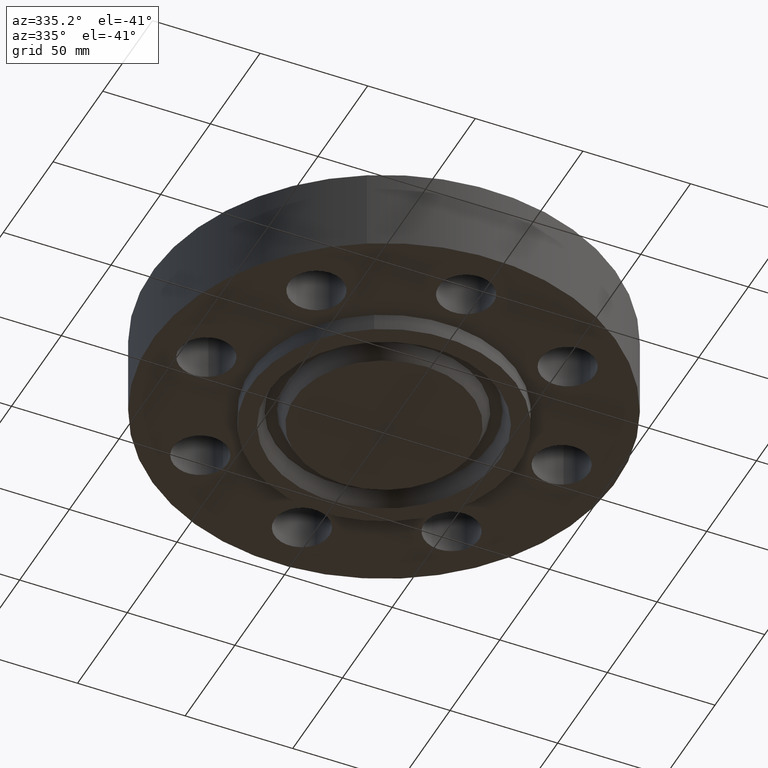
[diagram: clean part render]
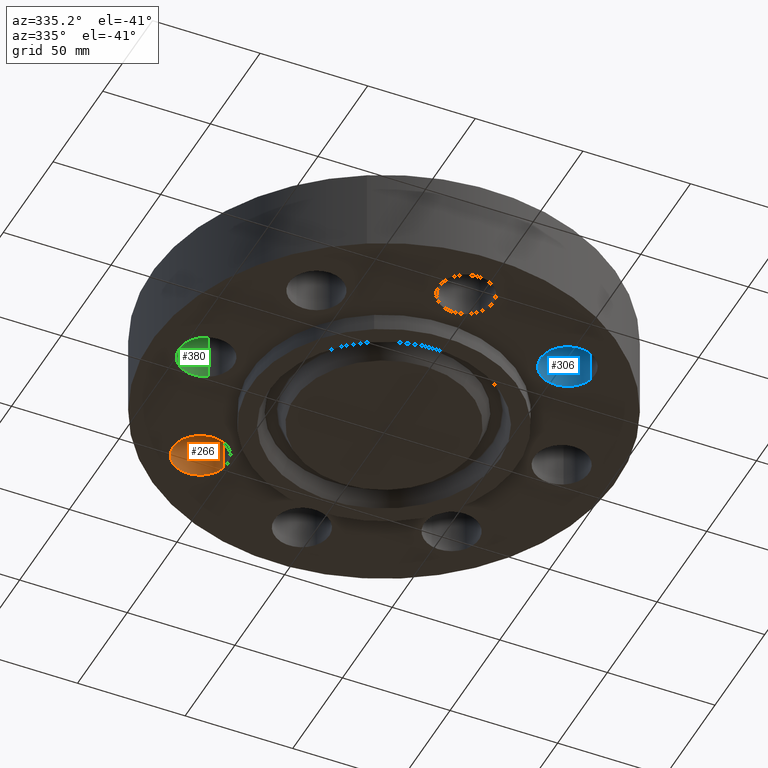
[diagram: same view with three faces highlighted in distinct colors, each labeled with its STEP entity id]
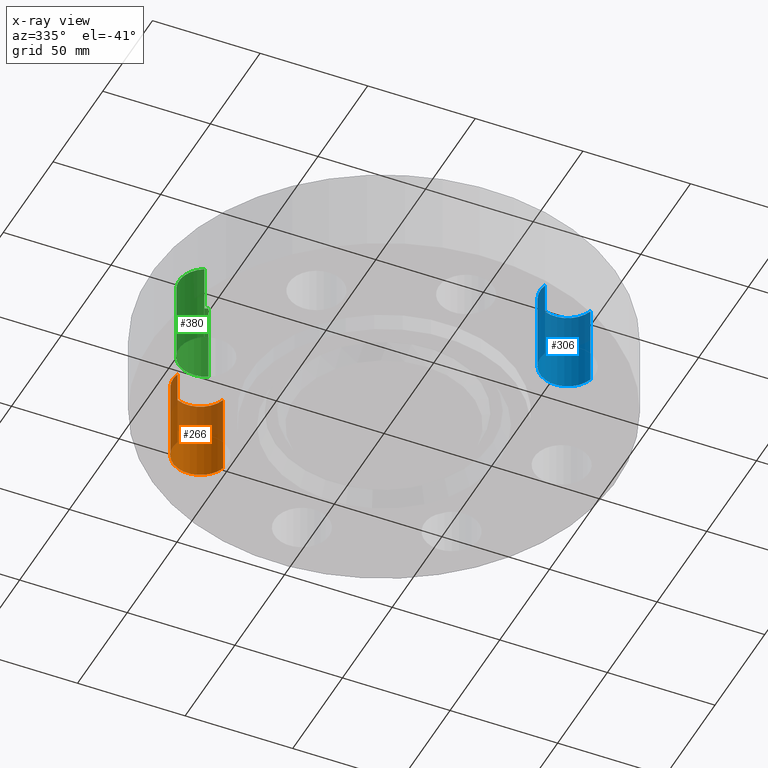
[diagram: x-ray of the same camera — body ghosted, the three highlighted faces saturated]
A machine part, auxiliary view with three faces highlighted in distinct colors.
The next image is the same camera in x-ray (body ghosted, the three faces saturated) — at least one of them is partly hidden behind the body in this view.
Their STEP definitions:

[orange] entity #266 — the highlighted cylindrical surface (edge-blend (fillet) strip) has radius 12.7 mm, axis along (0, 0, -1).
#213=AXIS2_PLACEMENT_3D('Cylinder Axis2P3D',#210,#211,#212) ;
#252=AXIS2_PLACEMENT_3D('Circle Axis2P3D',#250,#251,$) ;
#257=AXIS2_PLACEMENT_3D('Circle Axis2P3D',#255,#256,$) ;
#210=CARTESIAN_POINT('Axis2P3D Location',(-2.29809703887,2.29809703887,1.49606299213)) ;
#215=CARTESIAN_POINT('Line Origine',(-1.81832222387,2.43886680444,0.750000000003)) ;
#219=CARTESIAN_POINT('Vertex',(-1.81832222387,2.43886680444,0.)) ;
#221=CARTESIAN_POINT('Vertex',(-1.81832222387,2.43886680444,1.50000000001)) ;
#228=CARTESIAN_POINT('Vertex',(-2.77787185386,2.15732727329,0.)) ;
#231=CARTESIAN_POINT('Line Origine',(-2.77787185386,2.15732727329,0.750000000003)) ;
#235=CARTESIAN_POINT('Vertex',(-2.77787185386,2.15732727329,1.50000000001)) ;
#250=CARTESIAN_POINT('Axis2P3D Location',(-2.29809703887,2.29809703887,0.)) ;
#255=CARTESIAN_POINT('Axis2P3D Location',(-2.29809703887,2.29809703887,1.50000000001)) ;
#211=DIRECTION('Axis2P3D Direction',(0.,0.,-0.0393700787402)) ;
#212=DIRECTION('Axis2P3D XDirection',(-0.0377775444876,-0.0110842335096,-0.)) ;
#216=DIRECTION('Vector Direction',(0.,0.,-0.0393700787402)) ;
#232=DIRECTION('Vector Direction',(0.,0.,-0.0393700787402)) ;
#251=DIRECTION('Axis2P3D Direction',(0.,0.,-0.0393700787402)) ;
#256=DIRECTION('Axis2P3D Direction',(0.,0.,-0.0393700787402)) ;
#217=VECTOR('Line Direction',#216,0.0393700787402) ;
#233=VECTOR('Line Direction',#232,0.0393700787402) ;
#261=ORIENTED_EDGE('',*,*,#237,.F.) ;
#262=ORIENTED_EDGE('',*,*,#254,.T.) ;
#263=ORIENTED_EDGE('',*,*,#223,.T.) ;
#264=ORIENTED_EDGE('',*,*,#259,.F.) ;
#266=ADVANCED_FACE('PartBody',(#265),#214,.F.) ;
#253=CIRCLE('generated circle',#252,0.500000000002) ;
#258=CIRCLE('generated circle',#257,0.500000000002) ;
#214=CYLINDRICAL_SURFACE('generated cylinder',#213,0.500000000002) ;
#223=EDGE_CURVE('',#220,#222,#218,.F.) ;
#237=EDGE_CURVE('',#229,#236,#234,.F.) ;
#254=EDGE_CURVE('',#229,#220,#253,.T.) ;
#259=EDGE_CURVE('',#236,#222,#258,.T.) ;
#260=EDGE_LOOP('',(#261,#262,#263,#264)) ;
#265=FACE_OUTER_BOUND('',#260,.T.) ;
#218=LINE('Line',#215,#217) ;
#234=LINE('Line',#231,#233) ;
#220=VERTEX_POINT('',#219) ;
#222=VERTEX_POINT('',#221) ;
#229=VERTEX_POINT('',#228) ;
#236=VERTEX_POINT('',#235) ;

[blue] entity #306 — the highlighted cylindrical surface (edge-blend (fillet) strip) has radius 12.7 mm, axis along (-0, 0, -1).
#270=AXIS2_PLACEMENT_3D('Cylinder Axis2P3D',#267,#268,#269) ;
#283=AXIS2_PLACEMENT_3D('Circle Axis2P3D',#281,#282,$) ;
#297=AXIS2_PLACEMENT_3D('Circle Axis2P3D',#295,#296,$) ;
#267=CARTESIAN_POINT('Axis2P3D Location',(2.29809703887,-2.29809703887,1.49606299213)) ;
#272=CARTESIAN_POINT('Line Origine',(1.81832222387,-2.43886680444,0.750000000003)) ;
#276=CARTESIAN_POINT('Vertex',(1.81832222387,-2.43886680444,0.)) ;
#278=CARTESIAN_POINT('Vertex',(1.81832222387,-2.43886680444,1.50000000001)) ;
#281=CARTESIAN_POINT('Axis2P3D Location',(2.29809703887,-2.29809703887,0.)) ;
#285=CARTESIAN_POINT('Vertex',(2.77787185386,-2.15732727329,0.)) ;
#288=CARTESIAN_POINT('Line Origine',(2.77787185386,-2.15732727329,0.750000000003)) ;
#292=CARTESIAN_POINT('Vertex',(2.77787185386,-2.15732727329,1.50000000001)) ;
#295=CARTESIAN_POINT('Axis2P3D Location',(2.29809703887,-2.29809703887,1.50000000001)) ;
#268=DIRECTION('Axis2P3D Direction',(-0.,0.,-0.0393700787402)) ;
#269=DIRECTION('Axis2P3D XDirection',(0.0377775444876,0.0110842335096,-0.)) ;
#273=DIRECTION('Vector Direction',(0.,0.,-0.0393700787402)) ;
#282=DIRECTION('Axis2P3D Direction',(-0.,0.,-0.0393700787402)) ;
#289=DIRECTION('Vector Direction',(0.,0.,-0.0393700787402)) ;
#296=DIRECTION('Axis2P3D Direction',(-0.,0.,-0.0393700787402)) ;
#274=VECTOR('Line Direction',#273,0.0393700787402) ;
#290=VECTOR('Line Direction',#289,0.0393700787402) ;
#301=ORIENTED_EDGE('',*,*,#280,.F.) ;
#302=ORIENTED_EDGE('',*,*,#287,.T.) ;
#303=ORIENTED_EDGE('',*,*,#294,.T.) ;
#304=ORIENTED_EDGE('',*,*,#299,.F.) ;
#306=ADVANCED_FACE('PartBody',(#305),#271,.F.) ;
#284=CIRCLE('generated circle',#283,0.500000000002) ;
#298=CIRCLE('generated circle',#297,0.500000000002) ;
#271=CYLINDRICAL_SURFACE('generated cylinder',#270,0.500000000002) ;
#280=EDGE_CURVE('',#277,#279,#275,.F.) ;
#287=EDGE_CURVE('',#277,#286,#284,.T.) ;
#294=EDGE_CURVE('',#286,#293,#291,.F.) ;
#299=EDGE_CURVE('',#279,#293,#298,.T.) ;
#300=EDGE_LOOP('',(#301,#302,#303,#304)) ;
#305=FACE_OUTER_BOUND('',#300,.T.) ;
#275=LINE('Line',#272,#274) ;
#291=LINE('Line',#288,#290) ;
#277=VERTEX_POINT('',#276) ;
#279=VERTEX_POINT('',#278) ;
#286=VERTEX_POINT('',#285) ;
#293=VERTEX_POINT('',#292) ;

[green] entity #380 — the highlighted cylindrical surface (edge-blend (fillet) strip) has radius 12.7 mm, axis along (0, 0, -1).
#327=AXIS2_PLACEMENT_3D('Cylinder Axis2P3D',#324,#325,#326) ;
#366=AXIS2_PLACEMENT_3D('Circle Axis2P3D',#364,#365,$) ;
#371=AXIS2_PLACEMENT_3D('Circle Axis2P3D',#369,#370,$) ;
#324=CARTESIAN_POINT('Axis2P3D Location',(-3.25000000001,-5.97015314587E-016,1.49606299213)) ;
#329=CARTESIAN_POINT('Line Origine',(-3.01028723071,0.438791280947,0.750000000003)) ;
#333=CARTESIAN_POINT('Vertex',(-3.01028723071,0.438791280947,0.)) ;
#335=CARTESIAN_POINT('Vertex',(-3.01028723071,0.438791280947,1.50000000001)) ;
#342=CARTESIAN_POINT('Vertex',(-3.48971276932,-0.438791280947,0.)) ;
#345=CARTESIAN_POINT('Line Origine',(-3.48971276932,-0.438791280947,0.750000000003)) ;
#349=CARTESIAN_POINT('Vertex',(-3.48971276932,-0.438791280947,1.50000000001)) ;
#364=CARTESIAN_POINT('Axis2P3D Location',(-3.25000000001,-5.97015314587E-016,0.)) ;
#369=CARTESIAN_POINT('Axis2P3D Location',(-3.25000000001,-5.97015314587E-016,1.50000000001)) ;
#325=DIRECTION('Axis2P3D Direction',(0.,0.,-0.0393700787402)) ;
#326=DIRECTION('Axis2P3D XDirection',(-0.0188750212049,-0.0345504945626,-0.)) ;
#330=DIRECTION('Vector Direction',(0.,0.,-0.0393700787402)) ;
#346=DIRECTION('Vector Direction',(0.,0.,-0.0393700787402)) ;
#365=DIRECTION('Axis2P3D Direction',(0.,0.,-0.0393700787402)) ;
#370=DIRECTION('Axis2P3D Direction',(0.,0.,-0.0393700787402)) ;
#331=VECTOR('Line Direction',#330,0.0393700787402) ;
#347=VECTOR('Line Direction',#346,0.0393700787402) ;
#375=ORIENTED_EDGE('',*,*,#351,.F.) ;
#376=ORIENTED_EDGE('',*,*,#368,.T.) ;
#377=ORIENTED_EDGE('',*,*,#337,.T.) ;
#378=ORIENTED_EDGE('',*,*,#373,.F.) ;
#380=ADVANCED_FACE('PartBody',(#379),#328,.F.) ;
#367=CIRCLE('generated circle',#366,0.500000000002) ;
#372=CIRCLE('generated circle',#371,0.500000000002) ;
#328=CYLINDRICAL_SURFACE('generated cylinder',#327,0.500000000002) ;
#337=EDGE_CURVE('',#334,#336,#332,.F.) ;
#351=EDGE_CURVE('',#343,#350,#348,.F.) ;
#368=EDGE_CURVE('',#343,#334,#367,.T.) ;
#373=EDGE_CURVE('',#350,#336,#372,.T.) ;
#374=EDGE_LOOP('',(#375,#376,#377,#378)) ;
#379=FACE_OUTER_BOUND('',#374,.T.) ;
#332=LINE('Line',#329,#331) ;
#348=LINE('Line',#345,#347) ;
#334=VERTEX_POINT('',#333) ;
#336=VERTEX_POINT('',#335) ;
#343=VERTEX_POINT('',#342) ;
#350=VERTEX_POINT('',#349) ;